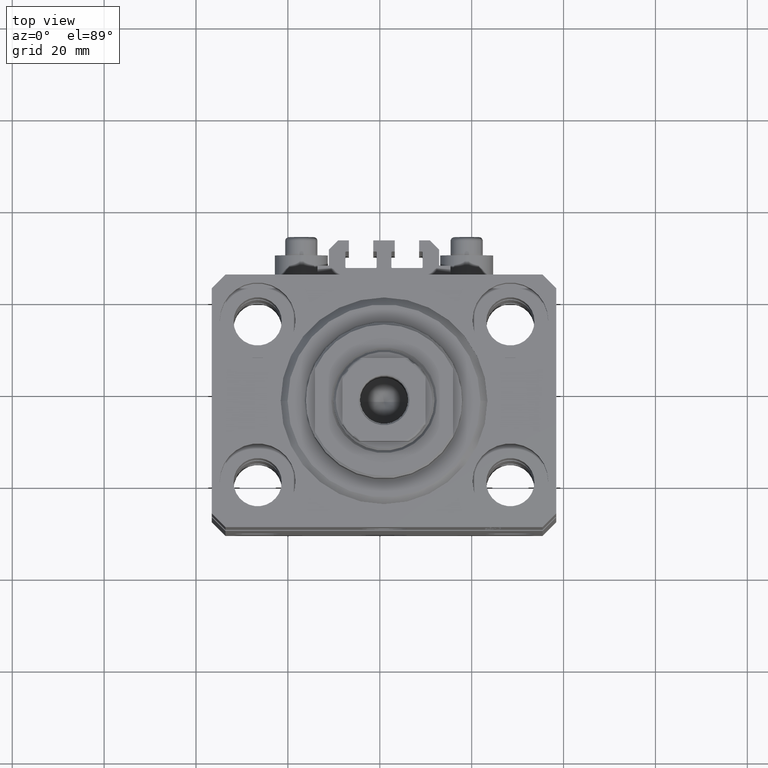
[diagram: clean part render]
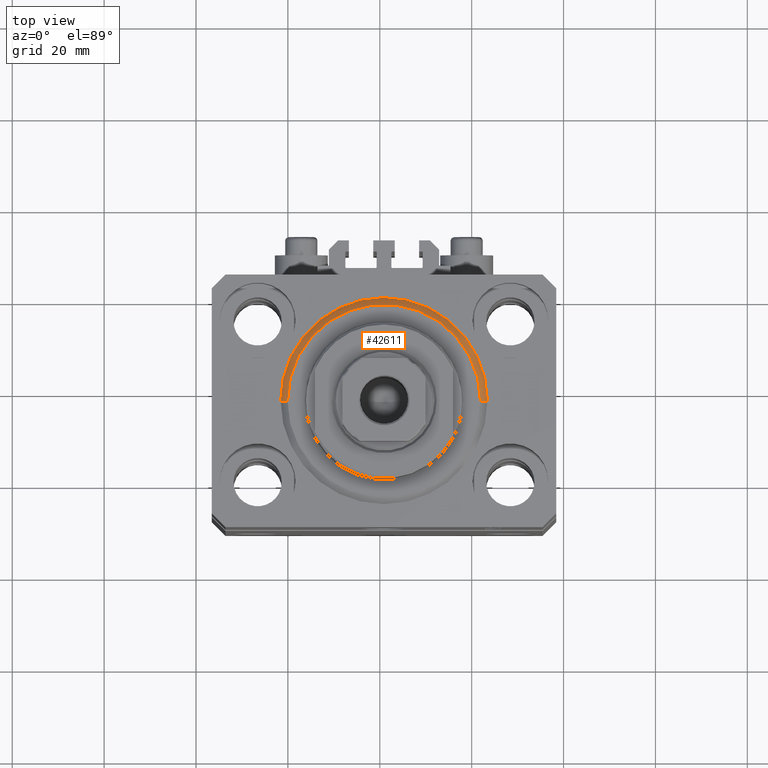
[diagram: same view with one face highlighted and labeled with its STEP entity id]
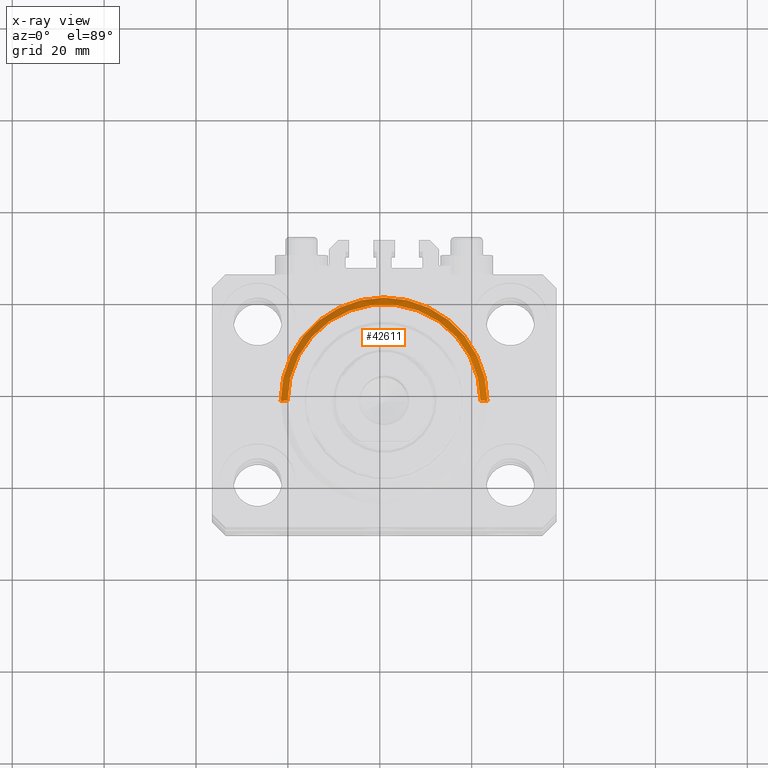
[diagram: x-ray of the same camera — body ghosted, the highlighted face saturated]
A machine part, top view. The second image highlights one B-rep face of the part: STEP entity #42611.
The next image is the same camera in x-ray: the body ghosted, the highlighted face saturated — about 0% of this face is hidden behind the body in this view.
In plain terms, the highlighted conical surface has half-angle 45 deg.
Its self-contained STEP definition (entity closure, byte-faithful):
#33 = AXIS2_PLACEMENT_3D ( 'NONE', #9709, #28579, #35621 ) ;
#196 = CARTESIAN_POINT ( 'NONE',  ( 0.000000000000000000, 0.000000000000000000, 1.500000000000001332 ) ) ;
#3612 = DIRECTION ( 'NONE',  ( -0.000000000000000000, -0.000000000000000000, 1.000000000000000000 ) ) ;
#5108 = AXIS2_PLACEMENT_3D ( 'NONE', #196, #3612, #33616 ) ;
#9249 = CARTESIAN_POINT ( 'NONE',  ( 20.99999999999998934, 0.000000000000000000, 0.000000000000000000 ) ) ;
#9709 = CARTESIAN_POINT ( 'NONE',  ( 0.000000000000000000, 0.000000000000000000, 1.500000000000001332 ) ) ;
#9713 = LINE ( 'NONE', #30610, #21876 ) ;
#10648 = FACE_OUTER_BOUND ( 'NONE', #38271, .T. ) ;
#11229 = VECTOR ( 'NONE', #15377, 1000.000000000000114 ) ;
#11796 = AXIS2_PLACEMENT_3D ( 'NONE', #24996, #40258, #28628 ) ;
#14462 = CARTESIAN_POINT ( 'NONE',  ( -22.50000000000000355, 0.000000000000000000, 1.500000000000001332 ) ) ;
#15377 = DIRECTION ( 'NONE',  ( -0.7071067811865500152, 8.659560562354963673E-17, 0.7071067811865451302 ) ) ;
#15929 = VERTEX_POINT ( 'NONE', #30669 ) ;
#16343 = EDGE_CURVE ( 'NONE', #15929, #36299, #25586, .T. ) ;
#19234 = DIRECTION ( 'NONE',  ( 0.7071067811865500152, 0.000000000000000000, 0.7071067811865451302 ) ) ;
#20723 = EDGE_CURVE ( 'NONE', #30756, #23381, #45043, .T. ) ;
#20778 = ORIENTED_EDGE ( 'NONE', *, *, #21864, .F. ) ;
#21864 = EDGE_CURVE ( 'NONE', #23381, #15929, #9713, .T. ) ;
#21876 = VECTOR ( 'NONE', #19234, 1000.000000000000114 ) ;
#22217 = CARTESIAN_POINT ( 'NONE',  ( -20.99999999999998934, 2.663606788145492628E-15, 0.000000000000000000 ) ) ;
#23381 = VERTEX_POINT ( 'NONE', #9249 ) ;
#24996 = CARTESIAN_POINT ( 'NONE',  ( 0.000000000000000000, 0.000000000000000000, 0.000000000000000000 ) ) ;
#25586 = CIRCLE ( 'NONE', #33, 22.50000000000000355 ) ;
#25989 = CONICAL_SURFACE ( 'NONE', #5108, 22.50000000000000355, 0.7853981633974517207 ) ;
#26514 = CARTESIAN_POINT ( 'NONE',  ( -22.50000000000000355, 2.755455298081545172E-15, 1.500000000000001332 ) ) ;
#28579 = DIRECTION ( 'NONE',  ( -0.000000000000000000, -0.000000000000000000, 1.000000000000000000 ) ) ;
#28628 = DIRECTION ( 'NONE',  ( 1.000000000000000000, 0.000000000000000000, 0.000000000000000000 ) ) ;
#30610 = CARTESIAN_POINT ( 'NONE',  ( 22.50000000000000355, 0.000000000000000000, 1.500000000000001332 ) ) ;
#30669 = CARTESIAN_POINT ( 'NONE',  ( 22.50000000000000355, 2.755455298081545172E-15, 1.500000000000001332 ) ) ;
#30756 = VERTEX_POINT ( 'NONE', #22217 ) ;
#33616 = DIRECTION ( 'NONE',  ( 1.000000000000000000, 0.000000000000000000, 0.000000000000000000 ) ) ;
#35621 = DIRECTION ( 'NONE',  ( 1.000000000000000000, 0.000000000000000000, 0.000000000000000000 ) ) ;
#36299 = VERTEX_POINT ( 'NONE', #14462 ) ;
#37908 = LINE ( 'NONE', #26514, #11229 ) ;
#38271 = EDGE_LOOP ( 'NONE', ( #41650, #45784, #40644, #20778 ) ) ;
#39928 = EDGE_CURVE ( 'NONE', #30756, #36299, #37908, .T. ) ;
#40258 = DIRECTION ( 'NONE',  ( -0.000000000000000000, -0.000000000000000000, -1.000000000000000000 ) ) ;
#40644 = ORIENTED_EDGE ( 'NONE', *, *, #16343, .F. ) ;
#41650 = ORIENTED_EDGE ( 'NONE', *, *, #20723, .F. ) ;
#42611 = ADVANCED_FACE ( 'NONE', ( #10648 ), #25989, .T. ) ;
#45043 = CIRCLE ( 'NONE', #11796, 20.99999999999998934 ) ;
#45784 = ORIENTED_EDGE ( 'NONE', *, *, #39928, .T. ) ;